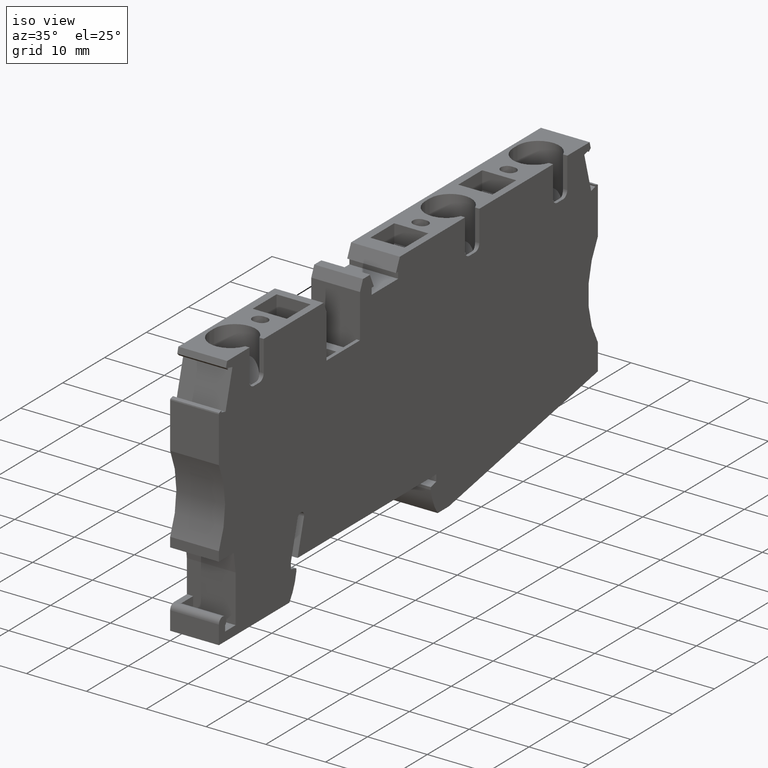
[diagram: clean part render]
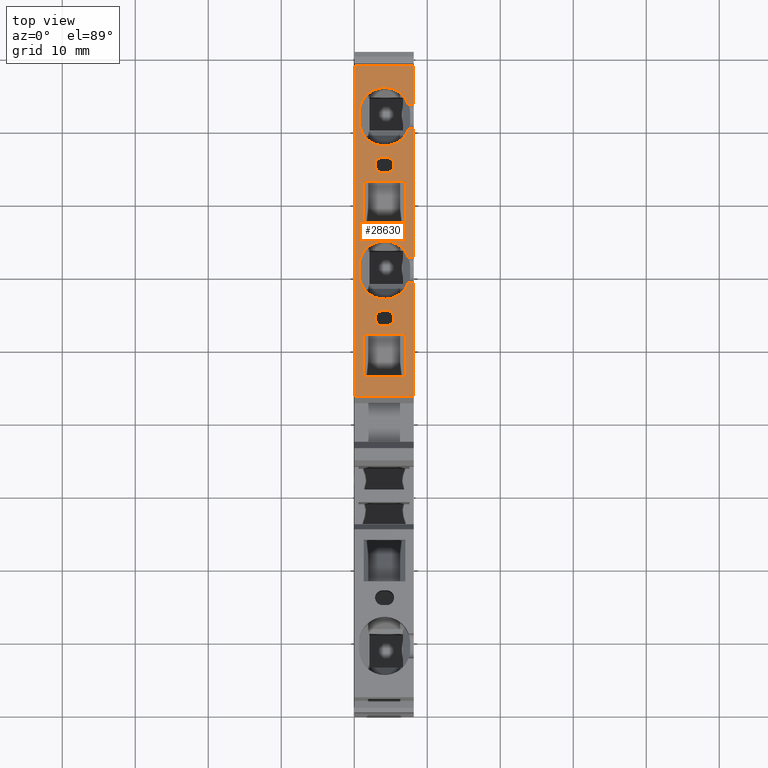
[diagram: tour spotlight — one face highlighted and labeled with its STEP entity id]
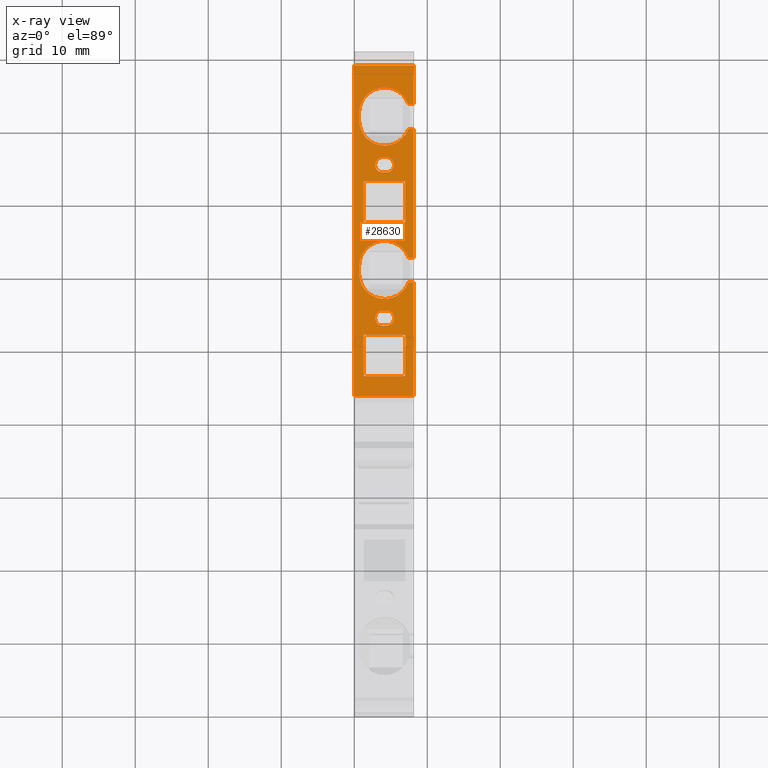
[diagram: x-ray of the same camera — body ghosted, this tour face saturated]
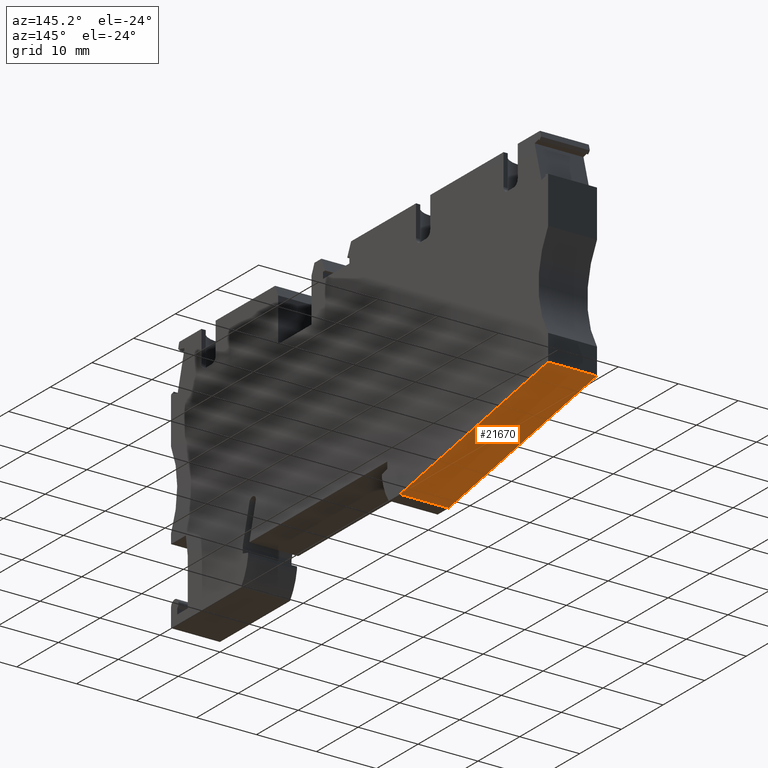
[diagram: tour spotlight — one face highlighted and labeled with its STEP entity id]
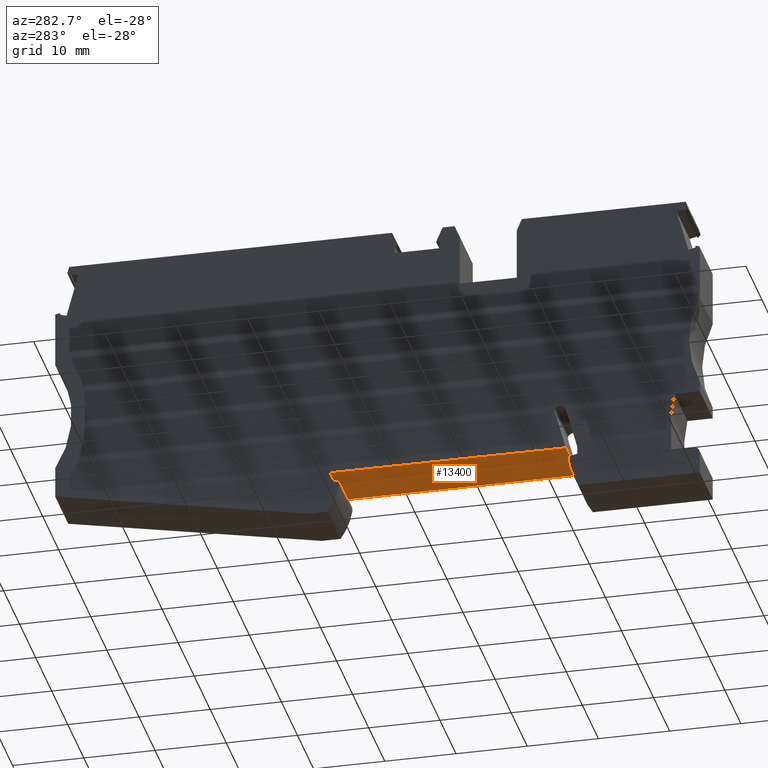
[diagram: tour spotlight — one face highlighted and labeled with its STEP entity id]
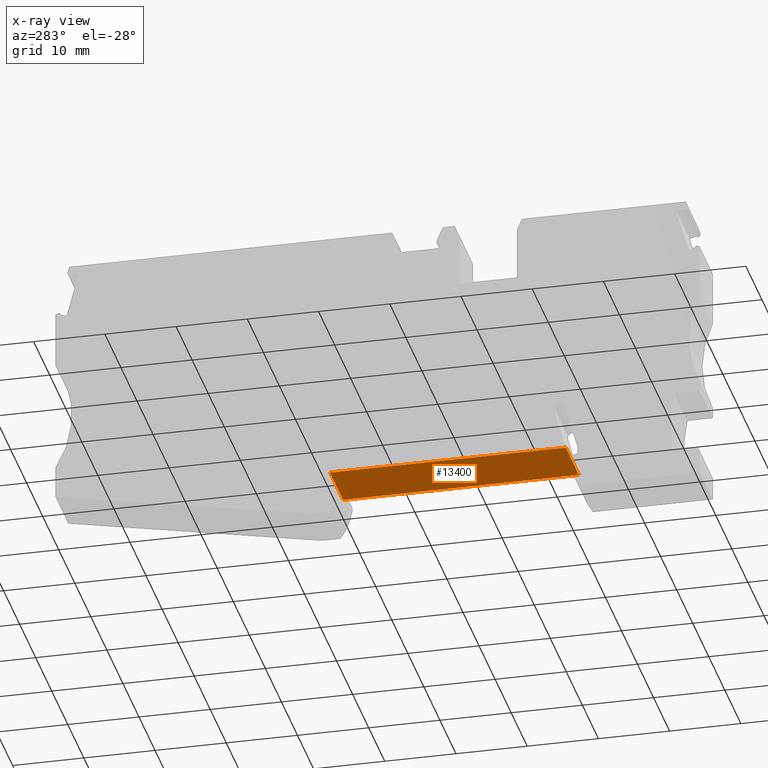
[diagram: x-ray of the same camera — body ghosted, this tour face saturated]
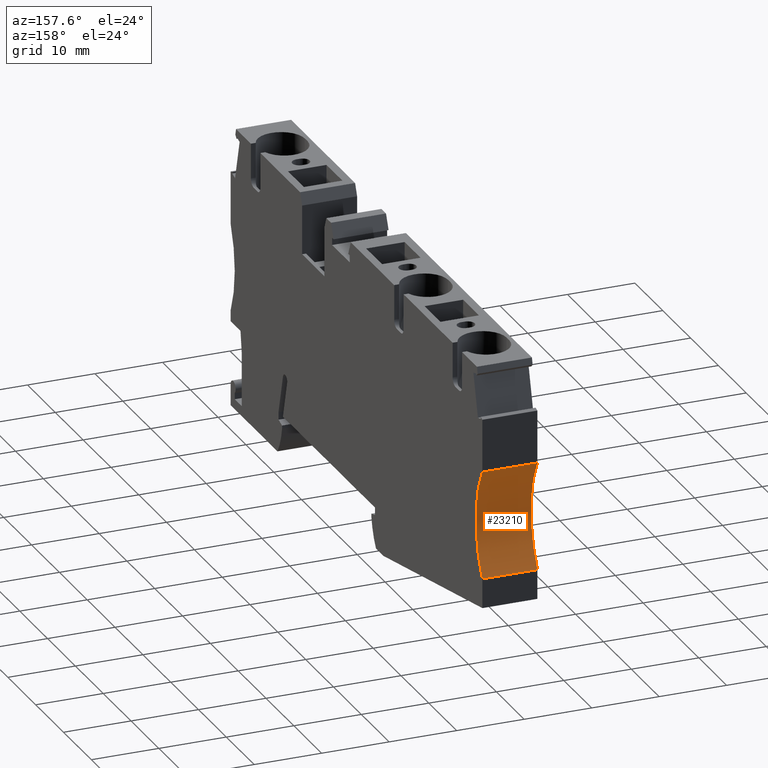
[diagram: tour spotlight — one face highlighted and labeled with its STEP entity id]
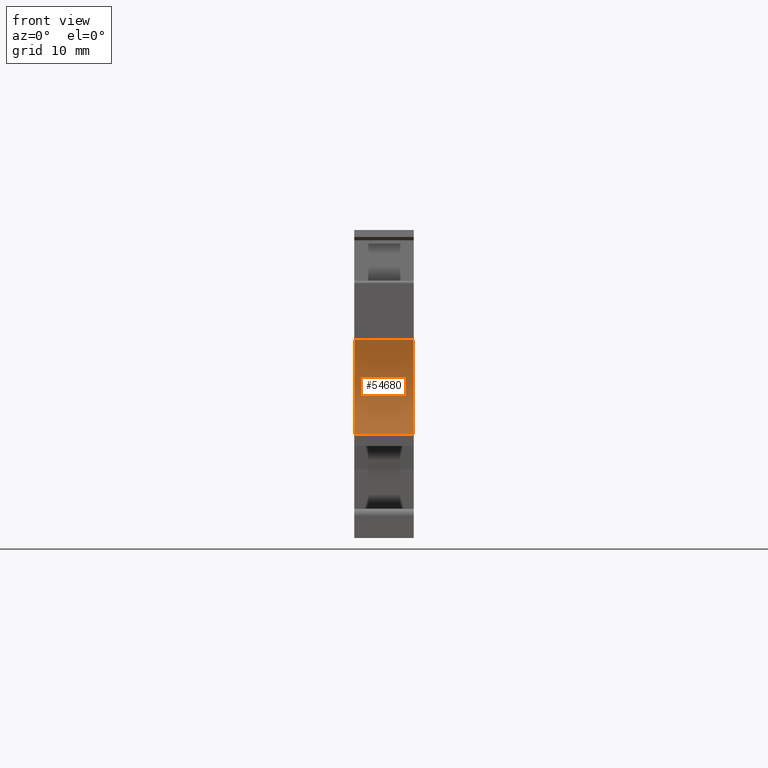
[diagram: tour spotlight — one face highlighted and labeled with its STEP entity id]
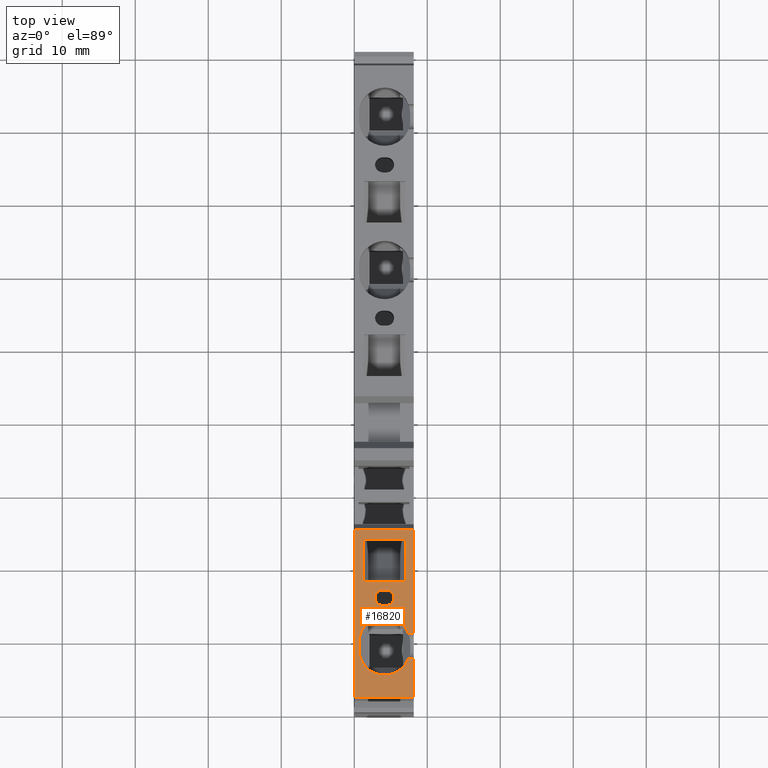
[diagram: tour spotlight — one face highlighted and labeled with its STEP entity id]
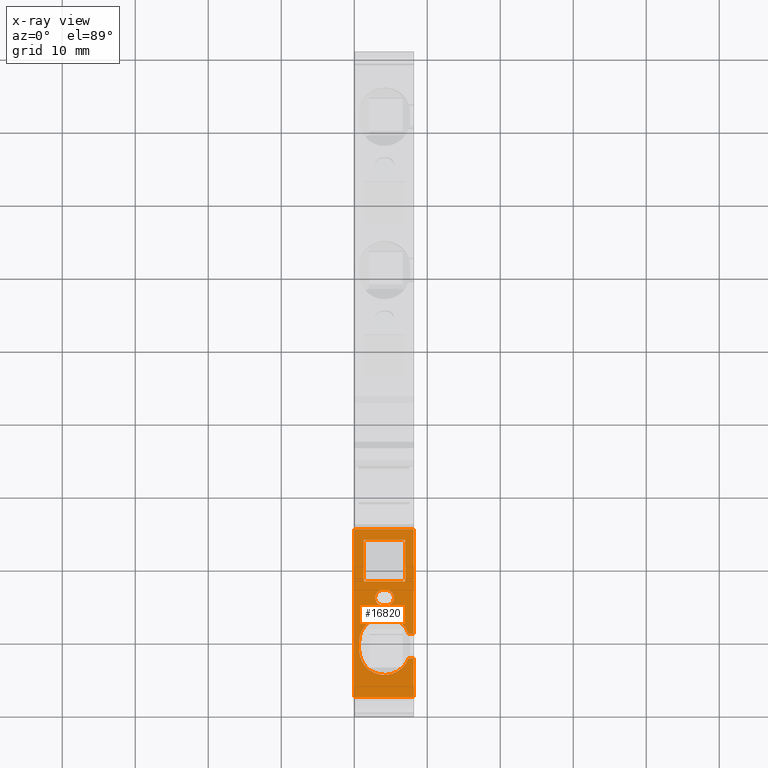
[diagram: x-ray of the same camera — body ghosted, this tour face saturated]
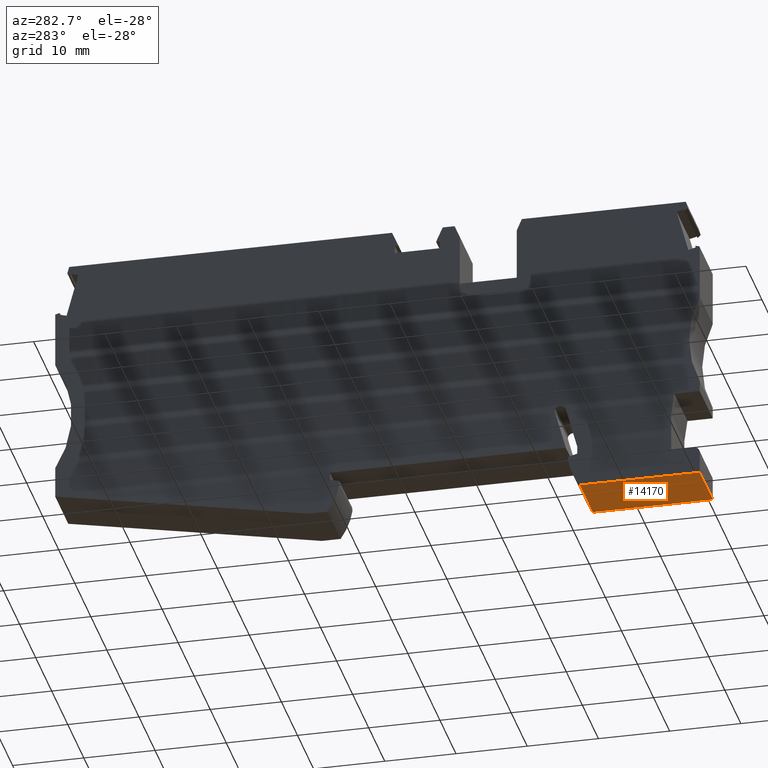
[diagram: tour spotlight — one face highlighted and labeled with its STEP entity id]
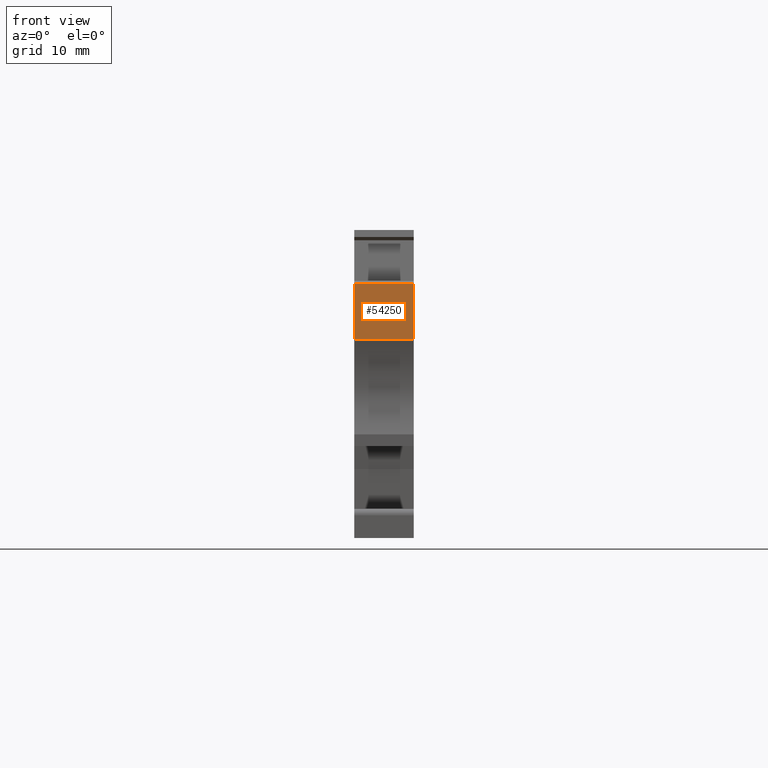
[diagram: tour spotlight — one face highlighted and labeled with its STEP entity id]
A machine part: a face-by-face anatomy tour. The part has 162 B-rep faces; the first image is the clean iso view, then the 8 largest visible faces are spotlighted one at a time (largest first), each with its STEP entity span.

Face 1 — top view, entity #28630. An x-ray twin of the same camera follows (body ghosted, this face saturated) — the face is partly hidden behind the body. In plain terms, the highlighted planar face has unit normal (0, 0, -1).
Definition (entity closure, byte-faithful):
#3680=CARTESIAN_POINT('',(-41.0958559619312,-2.19999999999667,53.67));
#3690=DIRECTION('',(1.,1.1550482792444E-13,0.));
#3700=VECTOR('',#3690,1.);
#3710=LINE('',#3680,#3700);
#4280=CARTESIAN_POINT('',(10.4418215966527,-2.19999999999068,53.67));
#4290=VERTEX_POINT('',#4280);
#4320=CARTESIAN_POINT('',(26.0321672216754,-2.1999999999889,53.67));
#4330=VERTEX_POINT('',#4320);
#4340=EDGE_CURVE('',#4290,#4330,#3710,.T.);
#4740=CARTESIAN_POINT('',(29.4321672216754,-2.19999999998852,53.67));
#4750=VERTEX_POINT('',#4740);
#4780=CARTESIAN_POINT('',(-41.0958559619296,-2.19999999999667,53.67));
#4790=DIRECTION('',(1.,1.1550482792444E-13,0.));
#4800=VECTOR('',#4790,1.);
#4810=LINE('',#4780,#4800);
#4820=CARTESIAN_POINT('',(47.0321672216756,-2.19999999999898,53.67));
#4830=VERTEX_POINT('',#4820);
#4840=EDGE_CURVE('',#4750,#4830,#4810,.T.);
#5240=CARTESIAN_POINT('',(50.4321672216755,-2.19999999999898,53.67));
#5250=VERTEX_POINT('',#5240);
#5280=CARTESIAN_POINT('',(55.7719729923255,-2.19999999998543,53.67));
#5290=VERTEX_POINT('',#5280);
#5300=EDGE_CURVE('',#5250,#5290,#4810,.T.);
#7530=CARTESIAN_POINT('',(55.7719729923255,-2.19999999998543,45.52));
#7540=VERTEX_POINT('',#7530);
#7570=CARTESIAN_POINT('',(-41.0958559619296,-2.19999999999667,45.52));
#7580=DIRECTION('',(-1.,-1.1550482792444E-13,0.));
#7590=VECTOR('',#7580,1.);
#7600=LINE('',#7570,#7590);
#7610=CARTESIAN_POINT('',(10.4418215966527,-2.19999999999068,45.52));
#7620=VERTEX_POINT('',#7610);
#7630=EDGE_CURVE('',#7540,#7620,#7600,.T.);
#21350=CARTESIAN_POINT('',(10.4418215966527,-2.19999999999073,53.67));
#21360=DIRECTION('',(0.,0.,-1.));
#21370=VECTOR('',#21360,1.);
#21380=LINE('',#21350,#21370);
#21390=EDGE_CURVE('',#4290,#7620,#21380,.T.);
#25930=CARTESIAN_POINT('',(55.7719729923255,-2.19999999998548,53.67));
#25940=DIRECTION('',(0.,0.,1.));
#25950=VECTOR('',#25940,1.);
#25960=LINE('',#25930,#25950);
#25970=EDGE_CURVE('',#7540,#5290,#25960,.T.);
#26300=CARTESIAN_POINT('',(1.65066694098099,-2.19999999999174,53.67));
#26310=DIRECTION('',(1.1550482792444E-13,-1.,0.));
#26320=DIRECTION('',(-1.,-1.1550482792444E-13,0.));
#26330=AXIS2_PLACEMENT_3D('',#26300,#26310,#26320);
#26340=PLANE('',#26330);
#26350=CARTESIAN_POINT('',(21.1321672216755,-2.19999999998948,49.92));
#26360=DIRECTION('',(0.,-1.,0.));
#26370=DIRECTION('',(-1.,0.,0.));
#26380=AXIS2_PLACEMENT_3D('',#26350,#26360,#26370);
#26390=CIRCLE('',#26380,1.05);
#26400=CARTESIAN_POINT('',(22.1821672216755,-2.19999999998936,49.92));
#26410=VERTEX_POINT('',#26400);
#26420=CARTESIAN_POINT('',(20.0821672216755,-2.19999999998961,49.92));
#26430=VERTEX_POINT('',#26420);
#26440=EDGE_CURVE('',#26410,#26430,#26390,.T.);
#26450=ORIENTED_EDGE('',*,*,#26440,.T.);
#26460=CARTESIAN_POINT('',(22.1821672216755,-2.19999999998936,53.67));
#26470=DIRECTION('',(0.,0.,1.));
#26480=VECTOR('',#26470,1.);
#26490=LINE('',#26460,#26480);
#26500=CARTESIAN_POINT('',(22.1821672216755,-2.19999999998949,49.42));
#26510=VERTEX_POINT('',#26500);
#26520=EDGE_CURVE('',#26510,#26410,#26490,.T.);
#26530=ORIENTED_EDGE('',*,*,#26520,.T.);
#26540=CARTESIAN_POINT('',(21.1321672216755,-2.19999999998948,49.42));
#26550=DIRECTION('',(0.,1.,0.));
#26560=DIRECTION('',(1.,0.,0.));
#26570=AXIS2_PLACEMENT_3D('',#26540,#26550,#26560);
#26580=CIRCLE('',#26570,1.05);
#26590=CARTESIAN_POINT('',(20.0821672216755,-2.19999999998949,49.42));
#26600=VERTEX_POINT('',#26590);
#26610=EDGE_CURVE('',#26510,#26600,#26580,.T.);
#26620=ORIENTED_EDGE('',*,*,#26610,.F.);
#26630=CARTESIAN_POINT('',(20.0821672216755,-2.19999999998961,53.67));
#26640=DIRECTION('',(0.,0.,-1.));
#26650=VECTOR('',#26640,1.);
#26660=LINE('',#26630,#26650);
#26670=EDGE_CURVE('',#26430,#26600,#26660,.T.);
#26680=ORIENTED_EDGE('',*,*,#26670,.T.);
#26690=EDGE_LOOP('',(#26680,#26620,#26530,#26450));
#26700=FACE_BOUND('',#26690,.T.);
#26710=CARTESIAN_POINT('',(-19.5576683774103,-2.19999999999418,46.82));
#26720=DIRECTION('',(-1.,-1.1550482792444E-13,0.));
#26730=VECTOR('',#26720,1.);
#26740=LINE('',#26710,#26730);
#26750=CARTESIAN_POINT('',(18.8821672216755,-2.19999999998975,46.82));
#26760=VERTEX_POINT('',#26750);
#26770=CARTESIAN_POINT('',(13.1821672216755,-2.1999999999904,46.82));
#26780=VERTEX_POINT('',#26770);
#26790=EDGE_CURVE('',#26760,#26780,#26740,.T.);
#26800=ORIENTED_EDGE('',*,*,#26790,.F.);
#26810=CARTESIAN_POINT('',(13.1821672216755,-2.1999999999904,53.67));
#26820=DIRECTION('',(0.,0.,-1.));
#26830=VECTOR('',#26820,1.);
#26840=LINE('',#26810,#26830);
#26850=CARTESIAN_POINT('',(13.1821672216755,-2.1999999999904,52.52));
#26860=VERTEX_POINT('',#26850);
#26870=EDGE_CURVE('',#26860,#26780,#26840,.T.);
#26880=ORIENTED_EDGE('',*,*,#26870,.T.);
#26890=CARTESIAN_POINT('',(-19.5576683774103,-2.19999999999418,52.52));
#26900=DIRECTION('',(-1.,-1.1550482792444E-13,0.));
#26910=VECTOR('',#26900,1.);
#26920=LINE('',#26890,#26910);
#26930=CARTESIAN_POINT('',(18.8821672216755,-2.19999999998975,52.52));
#26940=VERTEX_POINT('',#26930);
#26950=EDGE_CURVE('',#26940,#26860,#26920,.T.);
#26960=ORIENTED_EDGE('',*,*,#26950,.T.);
#26970=CARTESIAN_POINT('',(18.8821672216755,-2.19999999998975,53.67));
#26980=DIRECTION('',(0.,0.,1.));
#26990=VECTOR('',#26980,1.);
#27000=LINE('',#26970,#26990);
#27010=EDGE_CURVE('',#26760,#26940,#27000,.T.);
#27020=ORIENTED_EDGE('',*,*,#27010,.T.);
#27030=EDGE_LOOP('',(#27020,#26960,#26880,#26800));
#27040=FACE_BOUND('',#27030,.T.);
#27050=ORIENTED_EDGE('',*,*,#5300,.T.);
#27060=CARTESIAN_POINT('',(50.4321672216755,-2.1999999999861,53.67));
#27070=DIRECTION('',(2.77555756156289E-17,3.20705854339363E-30,-1.));
#27080=VECTOR('',#27070,1.);
#27090=LINE('',#27060,#27080);
#27100=CARTESIAN_POINT('',(50.4321672216755,-2.1999999999861,
52.9578564445547));
#27110=VERTEX_POINT('',#27100);
#27120=EDGE_CURVE('',#5250,#27110,#27090,.T.);
#27130=ORIENTED_EDGE('',*,*,#27120,.F.);
#27140=CARTESIAN_POINT('',(49.2321672216755,-2.19999999998624,49.67));
#27150=DIRECTION('',(-5.55111512312578E-17,-1.,-1.14844718039202E-35));
#27160=DIRECTION('',(-1.,5.55111512312578E-17,-2.77555756156289E-17));
#27170=AXIS2_PLACEMENT_3D('',#27140,#27150,#27160);
#27180=CIRCLE('',#27170,3.5);
#27190=CARTESIAN_POINT('',(49.2321672216756,-2.19999999998624,46.17));
#27200=VERTEX_POINT('',#27190);
#27210=EDGE_CURVE('',#27200,#27110,#27180,.T.);
#27220=ORIENTED_EDGE('',*,*,#27210,.T.);
#27230=CARTESIAN_POINT('',(-41.0958559619296,-2.19999999999667,46.17));
#27240=DIRECTION('',(-1.,-1.1550482792444E-13,-2.08166817117217E-17));
#27250=VECTOR('',#27240,1.);
#27260=LINE('',#27230,#27250);
#27270=CARTESIAN_POINT('',(48.2321672216756,-2.19999999998636,46.17));
#27280=VERTEX_POINT('',#27270);
#27290=EDGE_CURVE('',#27200,#27280,#27260,.T.);
#27300=ORIENTED_EDGE('',*,*,#27290,.F.);
#27310=CARTESIAN_POINT('',(48.2321672216756,-2.19999999998636,49.67));
#27320=DIRECTION('',(5.55111512312578E-17,1.,1.14844718039202E-35));
#27330=DIRECTION('',(1.,-5.55111512312578E-17,2.77555756156289E-17));
#27340=AXIS2_PLACEMENT_3D('',#27310,#27320,#27330);
#27350=CIRCLE('',#27340,3.5);
#27360=CARTESIAN_POINT('',(47.0321672216756,-2.19999999998636,
52.9578564445547));
#27370=VERTEX_POINT('',#27360);
#27380=EDGE_CURVE('',#27280,#27370,#27350,.T.);
#27390=ORIENTED_EDGE('',*,*,#27380,.F.);
#27400=CARTESIAN_POINT('',(47.0321672216756,-2.19999999998649,53.67));
#27410=DIRECTION('',(-2.77555756156289E-17,-3.20705854339363E-30,1.));
#27420=VECTOR('',#27410,1.);
#27430=LINE('',#27400,#27420);
#27440=EDGE_CURVE('',#27370,#4830,#27430,.T.);
#27450=ORIENTED_EDGE('',*,*,#27440,.F.);
#27460=ORIENTED_EDGE('',*,*,#4840,.T.);
#27470=CARTESIAN_POINT('',(29.4321672216753,-2.19999999998852,53.67));
#27480=DIRECTION('',(-1.04083408558602E-17,-1.20216547128651E-30,-1.));
#27490=VECTOR('',#27480,1.);
#27500=LINE('',#27470,#27490);
#27510=CARTESIAN_POINT('',(29.4321672216753,-2.19999999998852,
52.9578564445547));
#27520=VERTEX_POINT('',#27510);
#27530=EDGE_CURVE('',#4750,#27520,#27500,.T.);
#27540=ORIENTED_EDGE('',*,*,#27530,.F.);
#27550=CARTESIAN_POINT('',(28.2321672216755,-2.19999999998867,49.67));
#27560=DIRECTION('',(3.99680288865056E-15,-1.,-1.66376680437718E-16));
#27570=DIRECTION('',(-1.,-3.99680288865056E-15,1.04083408558602E-17));
#27580=AXIS2_PLACEMENT_3D('',#27550,#27560,#27570);
#27590=CIRCLE('',#27580,3.5);
#27600=CARTESIAN_POINT('',(28.2321672216755,-2.19999999998867,46.17));
#27610=VERTEX_POINT('',#27600);
#27620=EDGE_CURVE('',#27610,#27520,#27590,.T.);
#27630=ORIENTED_EDGE('',*,*,#27620,.T.);
#27640=CARTESIAN_POINT('',(-41.6212990497492,-2.19999999999673,46.17));
#27650=DIRECTION('',(-1.,-1.1550482792444E-13,1.38777878078145E-17));
#27660=VECTOR('',#27650,1.);
#27670=LINE('',#27640,#27660);
#27680=CARTESIAN_POINT('',(27.2321672216755,-2.19999999998878,46.17));
#27690=VERTEX_POINT('',#27680);
#27700=EDGE_CURVE('',#27610,#27690,#27670,.T.);
#27710=ORIENTED_EDGE('',*,*,#27700,.F.);
#27720=CARTESIAN_POINT('',(27.2321672216754,-2.19999999998878,49.67));
#27730=DIRECTION('',(-3.99680288865056E-15,1.,1.66376680437718E-16));
#27740=DIRECTION('',(1.,3.99680288865056E-15,-1.04083408558602E-17));
#27750=AXIS2_PLACEMENT_3D('',#27720,#27730,#27740);
#27760=CIRCLE('',#27750,3.5);
#27770=CARTESIAN_POINT('',(26.0321672216754,-2.19999999998891,
52.9578564445547));
#27780=VERTEX_POINT('',#27770);
#27790=EDGE_CURVE('',#27690,#27780,#27760,.T.);
#27800=ORIENTED_EDGE('',*,*,#27790,.F.);
#27810=CARTESIAN_POINT('',(26.0321672216754,-2.19999999998891,53.67));
#27820=DIRECTION('',(1.04083408558602E-17,1.20216547128651E-30,1.));
#27830=VECTOR('',#27820,1.);
#27840=LINE('',#27810,#27830);
#27850=EDGE_CURVE('',#27780,#4330,#27840,.T.);
#27860=ORIENTED_EDGE('',*,*,#27850,.F.);
#27870=ORIENTED_EDGE('',*,*,#4340,.T.);
#27880=ORIENTED_EDGE('',*,*,#21390,.F.);
#27890=ORIENTED_EDGE('',*,*,#7630,.T.);
#27900=ORIENTED_EDGE('',*,*,#25970,.F.);
#27910=EDGE_LOOP('',(#27900,#27890,#27880,#27870,#27860,#27800,#27710,
#27630,#27540,#27460,#27450,#27390,#27300,#27220,#27130,#27050));
#27920=FACE_OUTER_BOUND('',#27910,.T.);
#27930=CARTESIAN_POINT('',(41.0821672216756,-2.19999999998718,53.67));
#27940=DIRECTION('',(-3.08148791101958E-33,-3.56097787855003E-46,-1.));
#27950=VECTOR('',#27940,1.);
#27960=LINE('',#27930,#27950);
#27970=CARTESIAN_POINT('',(41.0821672216756,-2.19999999998706,49.92));
#27980=VERTEX_POINT('',#27970);
#27990=CARTESIAN_POINT('',(41.0821672216756,-2.19999999998706,49.42));
#28000=VERTEX_POINT('',#27990);
#28010=EDGE_CURVE('',#27980,#28000,#27960,.T.);
#28020=ORIENTED_EDGE('',*,*,#28010,.T.);
#28030=CARTESIAN_POINT('',(42.1321672216756,-2.19999999998706,49.92));
#28040=DIRECTION('',(-5.55111512312578E-17,-1.,5.55111512312578E-17));
#28050=DIRECTION('',(-1.,5.55111512312578E-17,0.));
#28060=AXIS2_PLACEMENT_3D('',#28030,#28040,#28050);
#28070=CIRCLE('',#28060,1.05);
#28080=CARTESIAN_POINT('',(43.1821672216756,-2.19999999998706,49.92));
#28090=VERTEX_POINT('',#28080);
#28100=EDGE_CURVE('',#28090,#27980,#28070,.T.);
#28110=ORIENTED_EDGE('',*,*,#28100,.T.);
#28120=CARTESIAN_POINT('',(43.1821672216756,-2.19999999998694,53.67));
#28130=DIRECTION('',(3.08148791101958E-33,3.56097787855003E-46,1.));
#28140=VECTOR('',#28130,1.);
#28150=LINE('',#28120,#28140);
#28160=CARTESIAN_POINT('',(43.1821672216756,-2.19999999998706,49.42));
#28170=VERTEX_POINT('',#28160);
#28180=EDGE_CURVE('',#28170,#28090,#28150,.T.);
#28190=ORIENTED_EDGE('',*,*,#28180,.T.);
#28200=CARTESIAN_POINT('',(42.1321672216756,-2.19999999998706,49.42));
#28210=DIRECTION('',(5.55111512312578E-17,1.,-5.55111512312578E-17));
#28220=DIRECTION('',(1.,-5.55111512312578E-17,0.));
#28230=AXIS2_PLACEMENT_3D('',#28200,#28210,#28220);
#28240=CIRCLE('',#28230,1.05);
#28250=EDGE_CURVE('',#28170,#28000,#28240,.T.);
#28260=ORIENTED_EDGE('',*,*,#28250,.F.);
#28270=EDGE_LOOP('',(#28260,#28190,#28110,#28020));
#28280=FACE_BOUND('',#28270,.T.);
#28290=CARTESIAN_POINT('',(34.1821672216756,-2.19999999998798,53.67));
#28300=DIRECTION('',(0.,0.,-1.));
#28310=VECTOR('',#28300,1.);
#28320=LINE('',#28290,#28310);
#28330=CARTESIAN_POINT('',(34.1821672216756,-2.19999999998798,52.52));
#28340=VERTEX_POINT('',#28330);
#28350=CARTESIAN_POINT('',(34.1821672216756,-2.19999999998798,46.82));
#28360=VERTEX_POINT('',#28350);
#28370=EDGE_CURVE('',#28340,#28360,#28320,.T.);
#28380=ORIENTED_EDGE('',*,*,#28370,.T.);
#28390=CARTESIAN_POINT('',(-41.0958559619296,-2.19999999999667,52.52));
#28400=DIRECTION('',(-1.,-1.1550482792444E-13,0.));
#28410=VECTOR('',#28400,1.);
#28420=LINE('',#28390,#28410);
#28430=CARTESIAN_POINT('',(39.8821672216756,-2.19999999998732,52.52));
#28440=VERTEX_POINT('',#28430);
#28450=EDGE_CURVE('',#28440,#28340,#28420,.T.);
#28460=ORIENTED_EDGE('',*,*,#28450,.T.);
#28470=CARTESIAN_POINT('',(39.8821672216756,-2.19999999998732,53.67));
#28480=DIRECTION('',(0.,0.,1.));
#28490=VECTOR('',#28480,1.);
#28500=LINE('',#28470,#28490);
#28510=CARTESIAN_POINT('',(39.8821672216756,-2.19999999998732,46.82));
#28520=VERTEX_POINT('',#28510);
#28530=EDGE_CURVE('',#28520,#28440,#28500,.T.);
#28540=ORIENTED_EDGE('',*,*,#28530,.T.);
#28550=CARTESIAN_POINT('',(-41.0958559619296,-2.19999999999667,46.82));
#28560=DIRECTION('',(-1.,-1.1550482792444E-13,0.));
#28570=VECTOR('',#28560,1.);
#28580=LINE('',#28550,#28570);
#28590=EDGE_CURVE('',#28520,#28360,#28580,.T.);
#28600=ORIENTED_EDGE('',*,*,#28590,.F.);
#28610=EDGE_LOOP('',(#28600,#28540,#28460,#28380));
#28620=FACE_BOUND('',#28610,.T.);
#28630=ADVANCED_FACE('',(#26700,#27040,#27920,#28280,#28620),#26340,.F.)
;

Face 2 — auxiliary view, entity #21670. In plain terms, the highlighted planar face has unit normal (0, -0.1881, 0.9822).
Definition (entity closure, byte-faithful):
#6170=CARTESIAN_POINT('',(57.7321672216756,-37.5829787234045,53.67));
#6180=VERTEX_POINT('',#6170);
#6210=CARTESIAN_POINT('',(-47.9245331717135,-57.8151128412913,53.67));
#6220=DIRECTION('',(0.98215519189214,0.188072270787892,0.));
#6230=VECTOR('',#6220,1.);
#6240=LINE('',#6210,#6230);
#6250=CARTESIAN_POINT('',(22.1321672216519,-44.4000000000017,53.67));
#6260=VERTEX_POINT('',#6250);
#6270=EDGE_CURVE('',#6260,#6180,#6240,.T.);
#6560=CARTESIAN_POINT('',(22.1321672216373,-44.4000000000017,45.52));
#6570=VERTEX_POINT('',#6560);
#6600=CARTESIAN_POINT('',(-47.9245331717135,-57.8151128412913,45.52));
#6610=DIRECTION('',(0.98215519189214,0.188072270787892,0.));
#6620=VECTOR('',#6610,1.);
#6630=LINE('',#6600,#6620);
#6640=CARTESIAN_POINT('',(57.7321672216756,-37.5829787234045,45.52));
#6650=VERTEX_POINT('',#6640);
#6660=EDGE_CURVE('',#6570,#6650,#6630,.T.);
#13830=CARTESIAN_POINT('',(22.132167221636,-44.4000000000091,53.67));
#13840=DIRECTION('',(0.,0.,-1.));
#13850=VECTOR('',#13840,1.);
#13860=LINE('',#13830,#13850);
#13870=EDGE_CURVE('',#6260,#6570,#13860,.T.);
#21510=CARTESIAN_POINT('',(56.9202394924636,-37.7384542460196,53.67));
#21520=DIRECTION('',(-0.188072270787892,0.98215519189214,0.));
#21530=DIRECTION('',(0.98215519189214,0.188072270787892,0.));
#21540=AXIS2_PLACEMENT_3D('',#21510,#21520,#21530);
#21550=PLANE('',#21540);
#21560=CARTESIAN_POINT('',(57.7321672216756,-37.5829787234045,53.67));
#21570=DIRECTION('',(0.,0.,1.));
#21580=VECTOR('',#21570,1.);
#21590=LINE('',#21560,#21580);
#21600=EDGE_CURVE('',#6650,#6180,#21590,.T.);
#21610=ORIENTED_EDGE('',*,*,#21600,.T.);
#21620=ORIENTED_EDGE('',*,*,#6660,.T.);
#21630=ORIENTED_EDGE('',*,*,#13870,.T.);
#21640=ORIENTED_EDGE('',*,*,#6270,.F.);
#21650=EDGE_LOOP('',(#21640,#21630,#21620,#21610));
#21660=FACE_OUTER_BOUND('',#21650,.T.);
#21670=ADVANCED_FACE('',(#21660),#21550,.F.);

Face 3 — auxiliary view, entity #13400. An x-ray twin of the same camera follows (body ghosted, this face saturated) — the face is partly hidden behind the body. In plain terms, the highlighted planar face has unit normal (0, 0, 1).
Definition (entity closure, byte-faithful):
#370=CARTESIAN_POINT('',(19.1321672216755,-38.4000000000016,53.67));
#380=VERTEX_POINT('',#370);
#410=CARTESIAN_POINT('',(-45.5406570666154,-38.4000000000016,53.67));
#420=DIRECTION('',(-1.,0.,0.));
#430=VECTOR('',#420,1.);
#440=LINE('',#410,#430);
#450=CARTESIAN_POINT('',(-13.967832778325,-38.4000000000016,53.67));
#460=VERTEX_POINT('',#450);
#470=EDGE_CURVE('',#380,#460,#440,.T.);
#10900=CARTESIAN_POINT('',(-13.967832778325,-38.4000000000016,45.52));
#10910=VERTEX_POINT('',#10900);
#10940=CARTESIAN_POINT('',(-45.5406570666154,-38.4000000000016,45.52));
#10950=DIRECTION('',(1.,0.,0.));
#10960=VECTOR('',#10950,1.);
#10970=LINE('',#10940,#10960);
#10980=CARTESIAN_POINT('',(19.1321672216755,-38.4000000000016,45.52));
#10990=VERTEX_POINT('',#10980);
#11000=EDGE_CURVE('',#10910,#10990,#10970,.T.);
#13000=CARTESIAN_POINT('',(-13.967832778325,-38.4000000000016,53.67));
#13010=DIRECTION('',(0.,0.,1.));
#13020=VECTOR('',#13010,1.);
#13030=LINE('',#13000,#13020);
#13040=EDGE_CURVE('',#10910,#460,#13030,.T.);
#13240=CARTESIAN_POINT('',(19.1321672216755,-38.4000000000016,53.67));
#13250=DIRECTION('',(-0.,1.,0.));
#13260=DIRECTION('',(1.,0.,0.));
#13270=AXIS2_PLACEMENT_3D('',#13240,#13250,#13260);
#13280=PLANE('',#13270);
#13290=ORIENTED_EDGE('',*,*,#470,.T.);
#13300=CARTESIAN_POINT('',(19.1321672216755,-38.4000000000016,
-7.105427357601E-15));
#13310=DIRECTION('',(0.,0.,-1.));
#13320=VECTOR('',#13310,1.);
#13330=LINE('',#13300,#13320);
#13340=EDGE_CURVE('',#380,#10990,#13330,.T.);
#13350=ORIENTED_EDGE('',*,*,#13340,.F.);
#13360=ORIENTED_EDGE('',*,*,#11000,.T.);
#13370=ORIENTED_EDGE('',*,*,#13040,.F.);
#13380=EDGE_LOOP('',(#13370,#13360,#13350,#13290));
#13390=FACE_OUTER_BOUND('',#13380,.T.);
#13400=ADVANCED_FACE('',(#13390),#13280,.F.);

Face 4 — auxiliary view, entity #23210. In plain terms, the highlighted cylindrical surface (partial cylindrical patch) has radius 15 mm, axis along (1, 0, 0).
Definition (entity closure, byte-faithful):
#6000=CARTESIAN_POINT('',(57.7321672216755,-17.2000000000023,53.67));
#6010=VERTEX_POINT('',#6000);
#6040=CARTESIAN_POINT('',(70.4207447621228,-25.2000000000012,53.67));
#6050=DIRECTION('',(0.,0.,1.));
#6060=DIRECTION('',(1.,0.,0.));
#6070=AXIS2_PLACEMENT_3D('',#6040,#6050,#6060);
#6080=CIRCLE('',#6070,14.9999999999975);
#6090=CARTESIAN_POINT('',(57.7321672216756,-33.2000000000001,53.67));
#6100=VERTEX_POINT('',#6090);
#6110=EDGE_CURVE('',#6010,#6100,#6080,.T.);
#6720=CARTESIAN_POINT('',(57.7321672216756,-33.2000000000001,45.52));
#6730=VERTEX_POINT('',#6720);
#6760=CARTESIAN_POINT('',(70.4207447621228,-25.2000000000012,45.52));
#6770=DIRECTION('',(0.,0.,1.));
#6780=DIRECTION('',(1.,0.,0.));
#6790=AXIS2_PLACEMENT_3D('',#6760,#6770,#6780);
#6800=CIRCLE('',#6790,14.9999999999975);
#6810=CARTESIAN_POINT('',(57.7321672216756,-17.2000000000023,45.52));
#6820=VERTEX_POINT('',#6810);
#6830=EDGE_CURVE('',#6820,#6730,#6800,.T.);
#22650=CARTESIAN_POINT('',(57.7321672216755,-17.2000000000023,53.67));
#22660=DIRECTION('',(0.,0.,1.));
#22670=VECTOR('',#22660,1.);
#22680=LINE('',#22650,#22670);
#22690=EDGE_CURVE('',#6820,#6010,#22680,.T.);
#23050=CARTESIAN_POINT('',(70.4207447621228,-25.2000000000012,53.67));
#23060=DIRECTION('',(0.,0.,1.));
#23070=DIRECTION('',(1.,0.,0.));
#23080=AXIS2_PLACEMENT_3D('',#23050,#23060,#23070);
#23090=CYLINDRICAL_SURFACE('',#23080,14.9999999999975);
#23100=ORIENTED_EDGE('',*,*,#6110,.T.);
#23110=ORIENTED_EDGE('',*,*,#22690,.T.);
#23120=ORIENTED_EDGE('',*,*,#6830,.F.);
#23130=CARTESIAN_POINT('',(57.7321672216756,-33.2000000000001,53.67));
#23140=DIRECTION('',(0.,0.,1.));
#23150=VECTOR('',#23140,1.);
#23160=LINE('',#23130,#23150);
#23170=EDGE_CURVE('',#6730,#6100,#23160,.T.);
#23180=ORIENTED_EDGE('',*,*,#23170,.F.);
#23190=EDGE_LOOP('',(#23180,#23120,#23110,#23100));
#23200=FACE_OUTER_BOUND('',#23190,.T.);
#23210=ADVANCED_FACE('',(#23200),#23090,.F.);

Face 5 — front view, entity #54680. In plain terms, the highlighted cylindrical surface (partial cylindrical patch) has radius 15 mm, axis along (1, 0, 0).
Definition (entity closure, byte-faithful):
#1850=CARTESIAN_POINT('',(-32.7678327783251,-30.1999999999908,53.67));
#1860=VERTEX_POINT('',#1850);
#1890=CARTESIAN_POINT('',(-46.2863386129202,-23.6999999999894,53.67));
#1900=DIRECTION('',(0.,0.,1.));
#1910=DIRECTION('',(1.,0.,0.));
#1920=AXIS2_PLACEMENT_3D('',#1890,#1900,#1910);
#1930=CIRCLE('',#1920,15.);
#1940=CARTESIAN_POINT('',(-32.7678327783251,-17.199999999988,53.67));
#1950=VERTEX_POINT('',#1940);
#1960=EDGE_CURVE('',#1860,#1950,#1930,.T.);
#9490=CARTESIAN_POINT('',(-32.7678327783251,-17.199999999988,45.52));
#9500=VERTEX_POINT('',#9490);
#9530=CARTESIAN_POINT('',(-46.2863386129202,-23.6999999999894,45.52));
#9540=DIRECTION('',(0.,0.,1.));
#9550=DIRECTION('',(1.,0.,0.));
#9560=AXIS2_PLACEMENT_3D('',#9530,#9540,#9550);
#9570=CIRCLE('',#9560,15.);
#9580=CARTESIAN_POINT('',(-32.7678327783251,-30.1999999999908,45.52));
#9590=VERTEX_POINT('',#9580);
#9600=EDGE_CURVE('',#9590,#9500,#9570,.T.);
#54150=CARTESIAN_POINT('',(-32.7678327783251,-17.199999999988,53.67));
#54160=DIRECTION('',(0.,0.,-1.));
#54170=VECTOR('',#54160,1.);
#54180=LINE('',#54150,#54170);
#54190=EDGE_CURVE('',#1950,#9500,#54180,.T.);
#54410=CARTESIAN_POINT('',(-32.7678327783251,-30.1999999999908,53.67));
#54420=DIRECTION('',(0.,0.,-1.));
#54430=VECTOR('',#54420,1.);
#54440=LINE('',#54410,#54430);
#54450=EDGE_CURVE('',#1860,#9590,#54440,.T.);
#54570=CARTESIAN_POINT('',(-46.2863386129202,-23.6999999999894,53.67));
#54580=DIRECTION('',(0.,0.,1.));
#54590=DIRECTION('',(1.,0.,0.));
#54600=AXIS2_PLACEMENT_3D('',#54570,#54580,#54590);
#54610=CYLINDRICAL_SURFACE('',#54600,15.);
#54620=ORIENTED_EDGE('',*,*,#1960,.T.);
#54630=ORIENTED_EDGE('',*,*,#54450,.F.);
#54640=ORIENTED_EDGE('',*,*,#9600,.F.);
#54650=ORIENTED_EDGE('',*,*,#54190,.T.);
#54660=EDGE_LOOP('',(#54650,#54640,#54630,#54620));
#54670=FACE_OUTER_BOUND('',#54660,.T.);
#54680=ADVANCED_FACE('',(#54670),#54610,.F.);

Face 6 — top view, entity #16820. An x-ray twin of the same camera follows (body ghosted, this face saturated) — the face is partly hidden behind the body. In plain terms, the highlighted planar face has unit normal (-0, -0, -1).
Definition (entity closure, byte-faithful):
#2700=CARTESIAN_POINT('',(-30.8076385489786,-2.19999999998685,53.67));
#2710=VERTEX_POINT('',#2700);
#2740=CARTESIAN_POINT('',(-41.0958559619301,-2.19999999998817,53.67));
#2750=DIRECTION('',(-1.,0.,0.));
#2760=VECTOR('',#2750,1.);
#2770=LINE('',#2740,#2760);
#2780=CARTESIAN_POINT('',(-25.4678327783245,-2.19999999998686,53.67));
#2790=VERTEX_POINT('',#2780);
#2800=EDGE_CURVE('',#2790,#2710,#2770,.T.);
#3200=CARTESIAN_POINT('',(-22.0678327783246,-2.19999999998682,53.67));
#3210=VERTEX_POINT('',#3200);
#3240=CARTESIAN_POINT('',(-7.78633249760639,-2.19999999998685,53.67));
#3250=VERTEX_POINT('',#3240);
#3260=EDGE_CURVE('',#3250,#3210,#2770,.T.);
#8650=CARTESIAN_POINT('',(-7.78633249760639,-2.19999999998685,45.52));
#8660=VERTEX_POINT('',#8650);
#8690=CARTESIAN_POINT('',(-19.5576683774103,-2.19999999998686,45.52));
#8700=DIRECTION('',(1.,0.,0.));
#8710=VECTOR('',#8700,1.);
#8720=LINE('',#8690,#8710);
#8730=CARTESIAN_POINT('',(-30.8076385489786,-2.19999999998685,45.52));
#8740=VERTEX_POINT('',#8730);
#8750=EDGE_CURVE('',#8740,#8660,#8720,.T.);
#15500=CARTESIAN_POINT('',(-30.4239750549892,-2.19999999998686,53.67));
#15510=DIRECTION('',(-0.,-1.,-0.));
#15520=DIRECTION('',(-1.,0.,0.));
#15530=AXIS2_PLACEMENT_3D('',#15500,#15510,#15520);
#15540=PLANE('',#15530);
#15550=CARTESIAN_POINT('',(-17.1678327783245,-2.19999999998686,49.92));
#15560=DIRECTION('',(0.,1.,0.));
#15570=DIRECTION('',(1.,0.,0.));
#15580=AXIS2_PLACEMENT_3D('',#15550,#15560,#15570);
#15590=CIRCLE('',#15580,1.05);
#15600=CARTESIAN_POINT('',(-18.2178327783245,-2.19999999998686,49.92));
#15610=VERTEX_POINT('',#15600);
#15620=CARTESIAN_POINT('',(-16.1178327783245,-2.19999999998686,49.92));
#15630=VERTEX_POINT('',#15620);
#15640=EDGE_CURVE('',#15610,#15630,#15590,.T.);
#15650=ORIENTED_EDGE('',*,*,#15640,.F.);
#15660=CARTESIAN_POINT('',(-16.1178327783245,-2.19999999998686,53.67));
#15670=DIRECTION('',(0.,0.,-1.));
#15680=VECTOR('',#15670,1.);
#15690=LINE('',#15660,#15680);
#15700=CARTESIAN_POINT('',(-16.1178327783245,-2.19999999998686,49.42));
#15710=VERTEX_POINT('',#15700);
#15720=EDGE_CURVE('',#15630,#15710,#15690,.T.);
#15730=ORIENTED_EDGE('',*,*,#15720,.F.);
#15740=CARTESIAN_POINT('',(-17.1678327783245,-2.19999999998686,49.42));
#15750=DIRECTION('',(0.,-1.,0.));
#15760=DIRECTION('',(-1.,0.,0.));
#15770=AXIS2_PLACEMENT_3D('',#15740,#15750,#15760);
#15780=CIRCLE('',#15770,1.05);
#15790=CARTESIAN_POINT('',(-18.2178327783245,-2.19999999998685,49.42));
#15800=VERTEX_POINT('',#15790);
#15810=EDGE_CURVE('',#15800,#15710,#15780,.T.);
#15820=ORIENTED_EDGE('',*,*,#15810,.T.);
#15830=CARTESIAN_POINT('',(-18.2178327783245,-2.19999999998686,53.67));
#15840=DIRECTION('',(0.,0.,1.));
#15850=VECTOR('',#15840,1.);
#15860=LINE('',#15830,#15850);
#15870=EDGE_CURVE('',#15800,#15610,#15860,.T.);
#15880=ORIENTED_EDGE('',*,*,#15870,.F.);
#15890=EDGE_LOOP('',(#15880,#15820,#15730,#15650));
#15900=FACE_BOUND('',#15890,.T.);
#15910=CARTESIAN_POINT('',(-19.5576683774103,-2.19999999998686,52.52));
#15920=DIRECTION('',(1.,0.,0.));
#15930=VECTOR('',#15920,1.);
#15940=LINE('',#15910,#15930);
#15950=CARTESIAN_POINT('',(-14.9178327783245,-2.19999999998686,52.52));
#15960=VERTEX_POINT('',#15950);
#15970=CARTESIAN_POINT('',(-9.2178327783245,-2.19999999998686,52.52));
#15980=VERTEX_POINT('',#15970);
#15990=EDGE_CURVE('',#15960,#15980,#15940,.T.);
#16000=ORIENTED_EDGE('',*,*,#15990,.F.);
#16010=CARTESIAN_POINT('',(-9.2178327783245,-2.19999999998686,53.67));
#16020=DIRECTION('',(0.,0.,-1.));
#16030=VECTOR('',#16020,1.);
#16040=LINE('',#16010,#16030);
#16050=CARTESIAN_POINT('',(-9.2178327783245,-2.19999999998686,46.82));
#16060=VERTEX_POINT('',#16050);
#16070=EDGE_CURVE('',#15980,#16060,#16040,.T.);
#16080=ORIENTED_EDGE('',*,*,#16070,.F.);
#16090=CARTESIAN_POINT('',(-19.5576683774103,-2.19999999998686,46.82));
#16100=DIRECTION('',(1.,0.,0.));
#16110=VECTOR('',#16100,1.);
#16120=LINE('',#16090,#16110);
#16130=CARTESIAN_POINT('',(-14.9178327783245,-2.19999999998686,46.82));
#16140=VERTEX_POINT('',#16130);
#16150=EDGE_CURVE('',#16140,#16060,#16120,.T.);
#16160=ORIENTED_EDGE('',*,*,#16150,.T.);
#16170=CARTESIAN_POINT('',(-14.9178327783245,-2.19999999998686,53.67));
#16180=DIRECTION('',(0.,0.,1.));
#16190=VECTOR('',#16180,1.);
#16200=LINE('',#16170,#16190);
#16210=EDGE_CURVE('',#16140,#15960,#16200,.T.);
#16220=ORIENTED_EDGE('',*,*,#16210,.F.);
#16230=EDGE_LOOP('',(#16220,#16160,#16080,#16000));
#16240=FACE_BOUND('',#16230,.T.);
#16250=ORIENTED_EDGE('',*,*,#3260,.F.);
#16260=CARTESIAN_POINT('',(-22.0678327783246,-2.19999999998685,53.67));
#16270=DIRECTION('',(-8.55284707229503E-50,4.7477838728799E-66,1.));
#16280=VECTOR('',#16270,1.);
#16290=LINE('',#16260,#16280);
#16300=CARTESIAN_POINT('',(-22.0678327783246,-2.19999999998686,
52.9578564445547));
#16310=VERTEX_POINT('',#16300);
#16320=EDGE_CURVE('',#16310,#3210,#16290,.T.);
#16330=ORIENTED_EDGE('',*,*,#16320,.T.);
#16340=CARTESIAN_POINT('',(-23.2678327783246,-2.19999999998686,49.67));
#16350=DIRECTION('',(0.,-1.,-1.14844718039201E-35));
#16360=DIRECTION('',(-1.,0.,1.87769454213428E-34));
#16370=AXIS2_PLACEMENT_3D('',#16340,#16350,#16360);
#16380=CIRCLE('',#16370,3.5);
#16390=CARTESIAN_POINT('',(-23.2678327783246,-2.19999999998686,46.17));
#16400=VERTEX_POINT('',#16390);
#16410=EDGE_CURVE('',#16400,#16310,#16380,.T.);
#16420=ORIENTED_EDGE('',*,*,#16410,.T.);
#16430=CARTESIAN_POINT('',(-41.621299049748,-2.19999999998686,46.17));
#16440=DIRECTION('',(1.,0.,0.));
#16450=VECTOR('',#16440,1.);
#16460=LINE('',#16430,#16450);
#16470=CARTESIAN_POINT('',(-24.2678327783246,-2.19999999998686,46.17));
#16480=VERTEX_POINT('',#16470);
#16490=EDGE_CURVE('',#16480,#16400,#16460,.T.);
#16500=ORIENTED_EDGE('',*,*,#16490,.T.);
#16510=CARTESIAN_POINT('',(-24.2678327783246,-2.19999999998686,49.67));
#16520=DIRECTION('',(0.,1.,1.14844718039201E-35));
#16530=DIRECTION('',(1.,0.,-1.87769454213428E-34));
#16540=AXIS2_PLACEMENT_3D('',#16510,#16520,#16530);
#16550=CIRCLE('',#16540,3.5);
#16560=CARTESIAN_POINT('',(-25.4678327783245,-2.19999999998685,
52.9578564445547));
#16570=VERTEX_POINT('',#16560);
#16580=EDGE_CURVE('',#16480,#16570,#16550,.T.);
#16590=ORIENTED_EDGE('',*,*,#16580,.F.);
#16600=CARTESIAN_POINT('',(-25.4678327783245,-2.19999999998685,53.67));
#16610=DIRECTION('',(8.55284707229503E-50,-4.7477838728799E-66,-1.));
#16620=VECTOR('',#16610,1.);
#16630=LINE('',#16600,#16620);
#16640=EDGE_CURVE('',#2790,#16570,#16630,.T.);
#16650=ORIENTED_EDGE('',*,*,#16640,.T.);
#16660=ORIENTED_EDGE('',*,*,#2800,.F.);
#16670=CARTESIAN_POINT('',(-30.8076385489786,-2.19999999998687,53.67));
#16680=DIRECTION('',(0.,0.,1.));
#16690=VECTOR('',#16680,1.);
#16700=LINE('',#16670,#16690);
#16710=EDGE_CURVE('',#8740,#2710,#16700,.T.);
#16720=ORIENTED_EDGE('',*,*,#16710,.T.);
#16730=ORIENTED_EDGE('',*,*,#8750,.F.);
#16740=CARTESIAN_POINT('',(-7.78633249760639,-2.19999999998686,53.67));
#16750=DIRECTION('',(0.,0.,1.));
#16760=VECTOR('',#16750,1.);
#16770=LINE('',#16740,#16760);
#16780=EDGE_CURVE('',#8660,#3250,#16770,.T.);
#16790=ORIENTED_EDGE('',*,*,#16780,.F.);
#16800=EDGE_LOOP('',(#16790,#16730,#16720,#16660,#16650,#16590,#16500,
#16420,#16330,#16250));
#16810=FACE_OUTER_BOUND('',#16800,.T.);
#16820=ADVANCED_FACE('',(#15900,#16240,#16810),#15540,.F.);

Face 7 — auxiliary view, entity #14170. In plain terms, the highlighted planar face has unit normal (0, -0, 1).
Definition (entity closure, byte-faithful):
#1120=CARTESIAN_POINT('',(-15.926776431457,-44.4000000000012,53.67));
#1130=VERTEX_POINT('',#1120);
#1160=CARTESIAN_POINT('',(-46.2773644320328,-44.4000000000013,53.67));
#1170=DIRECTION('',(-1.,-3.94129173741931E-15,0.));
#1180=VECTOR('',#1170,1.);
#1190=LINE('',#1160,#1180);
#1200=CARTESIAN_POINT('',(-32.7678327783247,-44.4000000000013,53.67));
#1210=VERTEX_POINT('',#1200);
#1220=EDGE_CURVE('',#1130,#1210,#1190,.T.);
#10150=CARTESIAN_POINT('',(-32.7678327783247,-44.4000000000013,45.52));
#10160=VERTEX_POINT('',#10150);
#10190=CARTESIAN_POINT('',(-46.2773644320328,-44.4000000000013,45.52));
#10200=DIRECTION('',(-1.,-3.94129173741931E-15,0.));
#10210=VECTOR('',#10200,1.);
#10220=LINE('',#10190,#10210);
#10230=CARTESIAN_POINT('',(-15.926776431457,-44.4000000000012,45.52));
#10240=VERTEX_POINT('',#10230);
#10250=EDGE_CURVE('',#10240,#10160,#10220,.T.);
#11490=CARTESIAN_POINT('',(-32.7678327783247,-44.4000000000013,53.67));
#11500=DIRECTION('',(0.,0.,1.));
#11510=VECTOR('',#11500,1.);
#11520=LINE('',#11490,#11510);
#11530=EDGE_CURVE('',#10160,#1210,#11520,.T.);
#12260=CARTESIAN_POINT('',(-15.9267764314571,-44.4000000000012,53.67));
#12270=DIRECTION('',(0.,0.,1.));
#12280=VECTOR('',#12270,1.);
#12290=LINE('',#12260,#12280);
#12300=EDGE_CURVE('',#10240,#1130,#12290,.T.);
#14060=CARTESIAN_POINT('',(-16.7947504074422,-44.4000000000012,53.67));
#14070=DIRECTION('',(-3.9412917374193E-15,1.,0.));
#14080=DIRECTION('',(1.,3.94129173741931E-15,0.));
#14090=AXIS2_PLACEMENT_3D('',#14060,#14070,#14080);
#14100=PLANE('',#14090);
#14110=ORIENTED_EDGE('',*,*,#12300,.T.);
#14120=ORIENTED_EDGE('',*,*,#10250,.F.);
#14130=ORIENTED_EDGE('',*,*,#11530,.F.);
#14140=ORIENTED_EDGE('',*,*,#1220,.T.);
#14150=EDGE_LOOP('',(#14140,#14130,#14120,#14110));
#14160=FACE_OUTER_BOUND('',#14150,.T.);
#14170=ADVANCED_FACE('',(#14160),#14100,.F.);

Face 8 — front view, entity #54250. In plain terms, the highlighted planar face has unit normal (0, 1, 0).
Definition (entity closure, byte-faithful):
#1940=CARTESIAN_POINT('',(-32.7678327783251,-17.199999999988,53.67));
#1950=VERTEX_POINT('',#1940);
#1980=CARTESIAN_POINT('',(-32.7678327783251,-32.7431569607022,53.67));
#1990=DIRECTION('',(2.05391259555654E-15,-1.,0.));
#2000=VECTOR('',#1990,1.);
#2010=LINE('',#1980,#2000);
#2020=CARTESIAN_POINT('',(-32.7678327783251,-9.51554445659872,53.67));
#2030=VERTEX_POINT('',#2020);
#2040=EDGE_CURVE('',#2030,#1950,#2010,.T.);
#9410=CARTESIAN_POINT('',(-32.7678327783251,-9.51554445659872,45.52));
#9420=VERTEX_POINT('',#9410);
#9450=CARTESIAN_POINT('',(-32.7678327783251,-37.5907940006739,45.52));
#9460=DIRECTION('',(-2.05391259555654E-15,1.,0.));
#9470=VECTOR('',#9460,1.);
#9480=LINE('',#9450,#9470);
#9490=CARTESIAN_POINT('',(-32.7678327783251,-17.199999999988,45.52));
#9500=VERTEX_POINT('',#9490);
#9510=EDGE_CURVE('',#9500,#9420,#9480,.T.);
#53920=CARTESIAN_POINT('',(-32.7678327783251,-9.51554445659877,53.67));
#53930=DIRECTION('',(0.,0.,-1.));
#53940=VECTOR('',#53930,1.);
#53950=LINE('',#53920,#53940);
#53960=EDGE_CURVE('',#2030,#9420,#53950,.T.);
#54090=CARTESIAN_POINT('',(-32.7678327783251,-17.199999999988,53.67));
#54100=DIRECTION('',(1.,2.05391259555654E-15,0.));
#54110=DIRECTION('',(2.05391259555654E-15,-1.,0.));
#54120=AXIS2_PLACEMENT_3D('',#54090,#54100,#54110);
#54130=PLANE('',#54120);
#54140=ORIENTED_EDGE('',*,*,#2040,.F.);
#54150=CARTESIAN_POINT('',(-32.7678327783251,-17.199999999988,53.67));
#54160=DIRECTION('',(0.,0.,-1.));
#54170=VECTOR('',#54160,1.);
#54180=LINE('',#54150,#54170);
#54190=EDGE_CURVE('',#1950,#9500,#54180,.T.);
#54200=ORIENTED_EDGE('',*,*,#54190,.F.);
#54210=ORIENTED_EDGE('',*,*,#9510,.F.);
#54220=ORIENTED_EDGE('',*,*,#53960,.T.);
#54230=EDGE_LOOP('',(#54220,#54210,#54200,#54140));
#54240=FACE_OUTER_BOUND('',#54230,.T.);
#54250=ADVANCED_FACE('',(#54240),#54130,.F.);